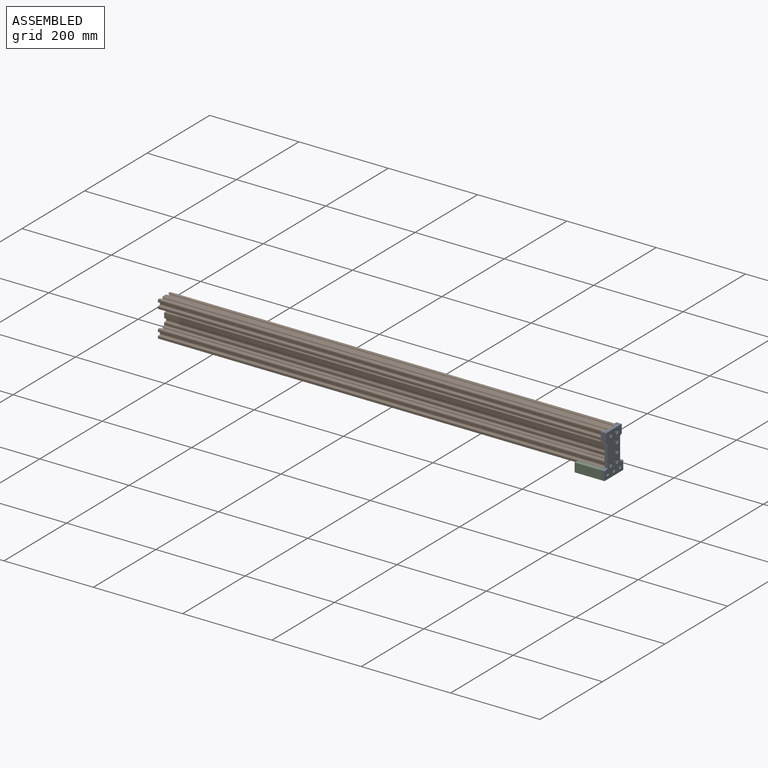
[diagram: assembled view]
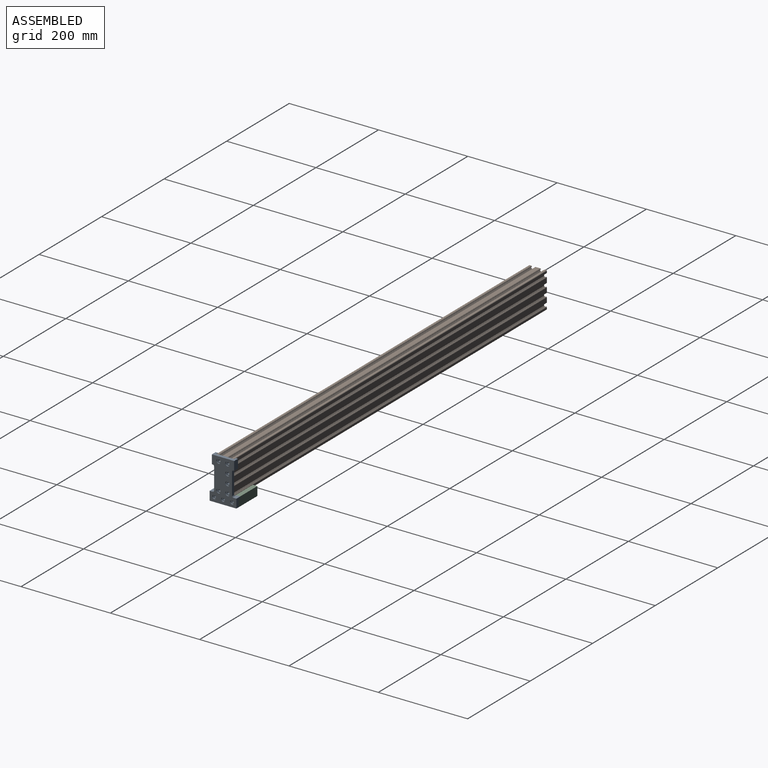
[diagram: assembled view, second angle]
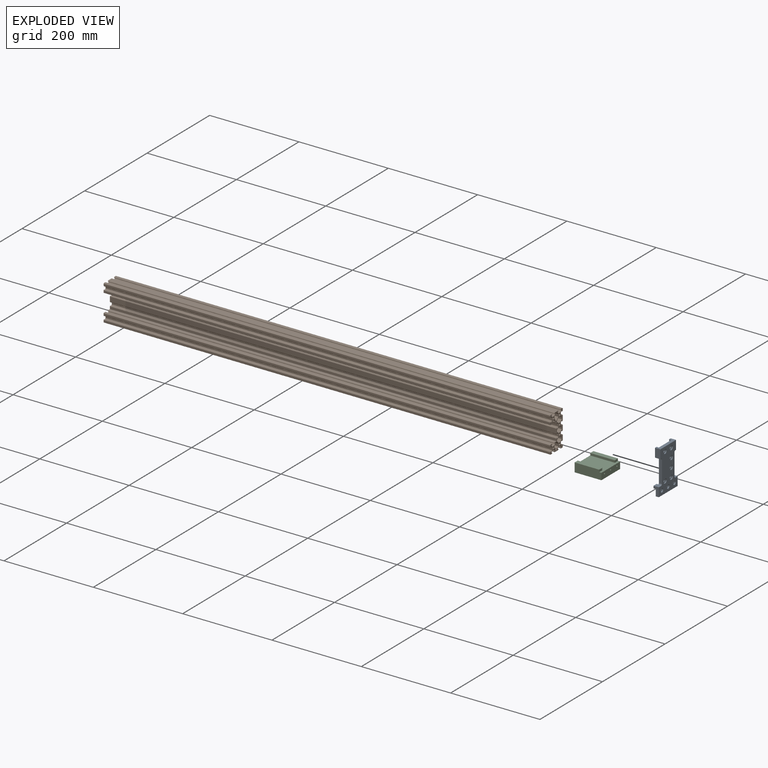
[diagram: exploded view]
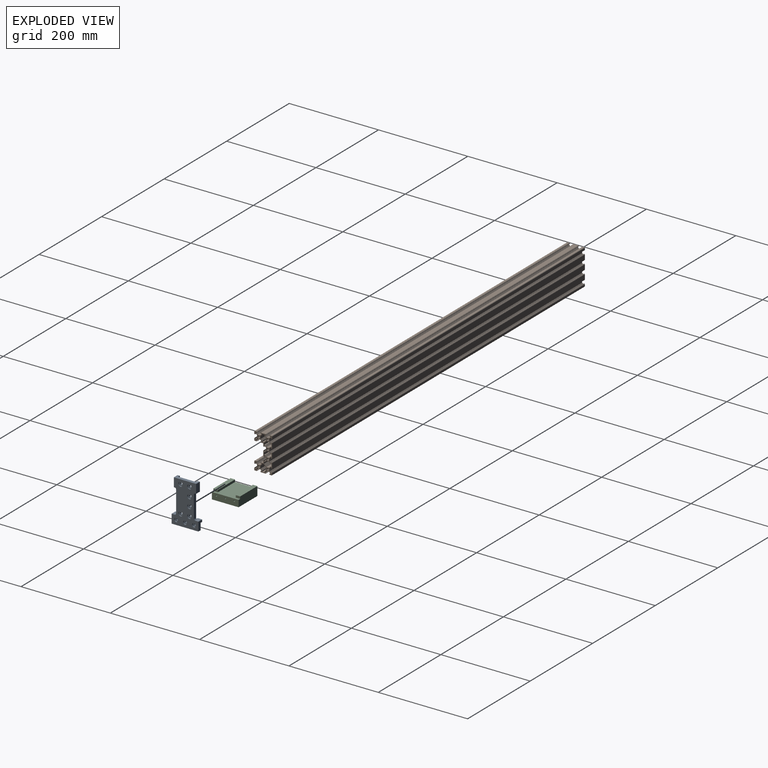
[diagram: exploded view, second angle]
ASSEMBLY  parts=3 mates=2
PART A: 55 faces, bbox 60x12x95 mm
  f0: plane 95x60mm, normal (0,-1,0), area 3933.5mm2, adj f1,f2,f3,f4,f5,f7,f9,f10
  f1: plane 12x10mm, normal (0,0,1), area 97.8mm2, adj f0,f2,f16,f17,f25,f27
  f2: cylinder r=3.17mm len=7mm, axis (0,1,0), area 34.9mm2, adj f0,f1,f3,f17
  f3: plane 48.65x7mm, normal (1,0,0), area 340.6mm2, adj f0,f2,f4,f17
  f4: cylinder r=3.17mm len=7mm, axis (0,1,0), area 34.9mm2, adj f0,f3,f5,f17
  f5: plane 12x5mm, normal (0,0,-1), area 37.8mm2, adj f0,f4,f6,f17,f21,f22
  f6: plane 20x12mm, normal (1,0,0), area 240mm2, adj f5,f7,f17,f22
  f7: plane 50x12mm, normal (0,0,1), area 400mm2, adj f0,f6,f8,f17,f21,f22,f23,f24
  f8: plane 20x12mm, normal (-1,0,0), area 240mm2, adj f7,f9,f17,f24
  f9: plane 12x5mm, normal (0,0,-1), area 37.8mm2, adj f0,f8,f10,f17,f23,f24
  f10: cylinder r=3.17mm len=7mm, axis (0,1,0), area 34.9mm2, adj f0,f9,f11,f17
  f11: plane 48.65x7mm, normal (-1,0,0), area 340.6mm2, adj f0,f10,f12,f17
  f12: cylinder r=3.17mm len=7mm, axis (0,1,0), area 34.9mm2, adj f0,f11,f13,f17
  f13: plane 12x10mm, normal (0,0,1), area 97.8mm2, adj f0,f12,f14,f17,f19,f20
  f14: plane 20x12mm, normal (-1,0,0), area 165mm2, adj f0,f13,f15,f17,f18,f20
  f15: plane 60x7mm, normal (0,0,-1), area 420mm2, adj f0,f14,f16,f17
  f16: plane 20x12mm, normal (1,0,0), area 165mm2, adj f0,f1,f15,f17,f26,f27
  f17: plane 95x60mm, normal (0,1,0), area 3800.3mm2, adj f1,f2,f3,f4,f5,f6,f7,f8
  f18: plane 10x5mm, normal (0,0,-1), area 50mm2, adj f0,f14,f19,f20
  f19: plane 5x5mm, normal (1,0,0), area 25mm2, adj f0,f13,f18,f20
  f20: plane 10x5mm, normal (0,-1,0), area 50mm2, adj f13,f14,f18,f19
  f21: plane 20x5mm, normal (-1,0,0), area 100mm2, adj f0,f5,f7,f22
  f22: plane 20x5mm, normal (0,-1,0), area 100mm2, adj f5,f6,f7,f21
  f23: plane 20x5mm, normal (1,0,0), area 100mm2, adj f0,f7,f9,f24
  f24: plane 20x5mm, normal (0,-1,0), area 100mm2, adj f7,f8,f9,f23
  f25: plane 5x5mm, normal (-1,0,0), area 25mm2, adj f0,f1,f26,f27
  f26: plane 10x5mm, normal (0,0,-1), area 50mm2, adj f0,f16,f25,f27
  f27: plane 10x5mm, normal (0,-1,0), area 50mm2, adj f1,f16,f25,f26
  f28: cylinder r=2.6mm len=5.2mm, axis (0,1,0), area 73.5mm2, adj f0,f29
  f29: plane 9.75x9.75mm, normal (0,1,0), area 53.4mm2, adj f28,f30
  f30: cylinder r=4.88mm len=9.75mm, axis (0,1,0), area 76.6mm2, adj f17,f29
  f31: cylinder r=2.6mm len=5.2mm, axis (0,1,0), area 73.5mm2, adj f0,f32
  f32: plane 9.75x9.75mm, normal (0,1,0), area 53.4mm2, adj f31,f33
  f33: cylinder r=4.88mm len=9.75mm, axis (0,1,0), area 76.6mm2, adj f17,f32
  f34: cylinder r=2.6mm len=5.2mm, axis (0,1,0), area 73.5mm2, adj f0,f35
  f35: plane 9.75x9.75mm, normal (0,1,0), area 53.4mm2, adj f34,f36
  f36: cylinder r=4.88mm len=9.75mm, axis (0,1,0), area 76.6mm2, adj f17,f35
  f37: cylinder r=2.6mm len=5.2mm, axis (0,1,0), area 73.5mm2, adj f0,f38
  f38: plane 9.75x9.75mm, normal (0,1,0), area 53.4mm2, adj f37,f39
  f39: cylinder r=4.88mm len=9.75mm, axis (0,1,0), area 76.6mm2, adj f17,f38
  f40: cylinder r=2.6mm len=5.2mm, axis (0,1,0), area 73.5mm2, adj f0,f41
  f41: plane 9.75x9.75mm, normal (0,1,0), area 53.4mm2, adj f40,f42
  f42: cylinder r=4.88mm len=9.75mm, axis (0,1,0), area 76.6mm2, adj f17,f41
  f43: cylinder r=2.6mm len=5.2mm, axis (0,1,0), area 73.5mm2, adj f0,f44
  f44: plane 9.75x9.75mm, normal (0,1,0), area 53.4mm2, adj f43,f45
  f45: cylinder r=4.88mm len=9.75mm, axis (0,1,0), area 76.6mm2, adj f17,f44
  f46: cylinder r=2.25mm len=4.5mm, axis (0,1,0), area 56.5mm2, adj f0,f47
  f47: plane 8.25x8.25mm, normal (0,1,0), area 37.6mm2, adj f46,f48
  f48: cylinder r=4.12mm len=8.25mm, axis (0,1,0), area 77.8mm2, adj f17,f47
  f49: cylinder r=2.25mm len=4.5mm, axis (0,1,0), area 56.5mm2, adj f0,f50
  f50: plane 8.25x8.25mm, normal (0,1,0), area 37.6mm2, adj f49,f51
  f51: cylinder r=4.12mm len=8.25mm, axis (0,1,0), area 77.8mm2, adj f17,f50
  f52: cylinder r=2.25mm len=4.5mm, axis (0,1,0), area 56.5mm2, adj f0,f53
  f53: plane 8.25x8.25mm, normal (0,1,0), area 37.6mm2, adj f52,f54
  f54: cylinder r=4.12mm len=8.25mm, axis (0,1,0), area 77.8mm2, adj f17,f53
PART B: 288 faces, bbox 40x1000x80 mm
  f0: cylinder r=2.3mm len=1000mm, axis (0,1,0), area 14451.3mm2, adj f286,f287
  f1: cylinder r=2.3mm len=1000mm, axis (0,1,0), area 14451.3mm2, adj f286,f287
  f2: cylinder r=2.3mm len=1000mm, axis (0,1,0), area 14451.3mm2, adj f286,f287
  f3: cylinder r=2.3mm len=1000mm, axis (0,1,0), area 14451.3mm2, adj f286,f287
  f4: cylinder r=2.3mm len=1000mm, axis (0,1,0), area 14451.3mm2, adj f286,f287
  f5: cylinder r=2.3mm len=1000mm, axis (0,1,0), area 14451.3mm2, adj f286,f287
  f6: plane 1000x0.21mm, normal (0.71,0,0.71), area 297mm2, adj f7,f280,f286,f287
  f7: plane 1000x0.21mm, normal (0.71,0,-0.71), area 297mm2, adj f6,f8,f286,f287
  f8: plane 1000x2.63mm, normal (1,0,0), area 2629.3mm2, adj f7,f9,f286,f287
  f9: plane 1000x2.66mm, normal (0.71,0,-0.71), area 3762.7mm2, adj f8,f10,f286,f287
  f10: plane 1000x1.64mm, normal (0,0,-1), area 1639.3mm2, adj f9,f11,f286,f287
  f11: plane 1000x2.11mm, normal (-1,0,0), area 2105mm2, adj f10,f12,f286,f287
  f12: plane 1000x0.62mm, normal (0,0,-1), area 615mm2, adj f11,f13,f286,f287
  f13: plane 1000x1.19mm, normal (0.71,0,-0.71), area 1675.8mm2, adj f12,f14,f286,f287
  f14: plane 1000x3.92mm, normal (1,0,0), area 3920mm2, adj f13,f15,f286,f287
  f15: cylinder r=1.5mm len=1000mm, axis (0,1,0), area 2356.2mm2, adj f14,f16,f286,f287
  f16: plane 1000x3.92mm, normal (0,0,1), area 3920mm2, adj f15,f17,f286,f287
  f17: plane 1000x1.19mm, normal (-0.71,0,0.71), area 1675.8mm2, adj f16,f18,f286,f287
  f18: plane 1000x0.62mm, normal (-1,0,0), area 615mm2, adj f17,f19,f286,f287
  f19: plane 1000x2.11mm, normal (0,0,-1), area 2105mm2, adj f18,f20,f286,f287
  f20: plane 1000x1.64mm, normal (-1,0,0), area 1639.3mm2, adj f19,f21,f286,f287
  f21: plane 1000x2.66mm, normal (-0.71,0,0.71), area 3762.7mm2, adj f20,f22,f286,f287
  f22: plane 1000x2.63mm, normal (0,0,1), area 2629.3mm2, adj f21,f23,f286,f287
  f23: plane 1000x0.21mm, normal (-0.71,0,0.71), area 297mm2, adj f22,f24,f286,f287
  f24: plane 1000x0.21mm, normal (0.71,0,0.71), area 297mm2, adj f23,f25,f286,f287
  f25: plane 1000x2.63mm, normal (0,0,1), area 2629.3mm2, adj f24,f26,f286,f287
  f26: plane 1000x2.66mm, normal (0.71,0,0.71), area 3762.7mm2, adj f25,f27,f286,f287
  f27: plane 1000x1.64mm, normal (1,0,0), area 1639.3mm2, adj f26,f28,f286,f287
  f28: plane 1000x2.11mm, normal (0,0,-1), area 2105mm2, adj f27,f29,f286,f287
  f29: plane 1000x0.62mm, normal (1,0,0), area 615mm2, adj f28,f30,f286,f287
  f30: plane 1000x1.19mm, normal (0.71,0,0.71), area 1675.8mm2, adj f29,f31,f286,f287
  f31: plane 1000x10.84mm, normal (0,0,1), area 10840mm2, adj f30,f32,f286,f287
  f32: plane 1000x1.19mm, normal (-0.71,0,0.71), area 1675.8mm2, adj f31,f33,f286,f287
  f33: plane 1000x0.62mm, normal (-1,0,0), area 615mm2, adj f32,f34,f286,f287
  f34: plane 1000x2.11mm, normal (0,0,-1), area 2105mm2, adj f33,f35,f286,f287
  f35: plane 1000x1.64mm, normal (-1,0,0), area 1639.3mm2, adj f34,f36,f286,f287
  f36: plane 1000x2.66mm, normal (-0.71,0,0.71), area 3762.7mm2, adj f35,f37,f286,f287
  f37: plane 1000x2.63mm, normal (0,0,1), area 2629.3mm2, adj f36,f38,f286,f287
  f38: plane 1000x0.21mm, normal (-0.71,0,0.71), area 297mm2, adj f37,f39,f286,f287
  f39: plane 1000x0.21mm, normal (0.71,0,0.71), area 297mm2, adj f38,f40,f286,f287
  f40: plane 1000x2.63mm, normal (0,0,1), area 2629.3mm2, adj f39,f41,f286,f287
  f41: plane 1000x2.66mm, normal (0.71,0,0.71), area 3762.7mm2, adj f40,f42,f286,f287
  f42: plane 1000x1.64mm, normal (1,0,0), area 1639.3mm2, adj f41,f43,f286,f287
  f43: plane 1000x2.11mm, normal (0,0,-1), area 2105mm2, adj f42,f44,f286,f287
  f44: plane 1000x0.62mm, normal (1,0,0), area 615mm2, adj f43,f45,f286,f287
  f45: plane 1000x1.19mm, normal (0.71,0,0.71), area 1675.8mm2, adj f44,f46,f286,f287
  f46: plane 1000x3.92mm, normal (0,0,1), area 3920mm2, adj f45,f47,f286,f287
  f47: cylinder r=1.5mm len=1000mm, axis (0,1,0), area 2356.2mm2, adj f46,f48,f286,f287
  f48: plane 1000x3.92mm, normal (-1,0,0), area 3920mm2, adj f47,f49,f286,f287
  f49: plane 1000x1.19mm, normal (-0.71,0,-0.71), area 1675.8mm2, adj f48,f50,f286,f287
  f50: plane 1000x0.62mm, normal (0,0,-1), area 615mm2, adj f49,f51,f286,f287
  f51: plane 1000x2.11mm, normal (1,0,0), area 2105mm2, adj f50,f52,f286,f287
  f52: plane 1000x1.64mm, normal (0,0,-1), area 1639.3mm2, adj f51,f53,f286,f287
  f53: plane 1000x2.66mm, normal (-0.71,0,-0.71), area 3762.7mm2, adj f52,f54,f286,f287
  f54: plane 1000x2.63mm, normal (-1,0,0), area 2629.3mm2, adj f53,f55,f286,f287
  f55: plane 1000x0.21mm, normal (-0.71,0,-0.71), area 297mm2, adj f54,f56,f286,f287
  f56: plane 1000x0.21mm, normal (-0.71,0,0.71), area 297mm2, adj f55,f57,f286,f287
  f57: plane 1000x2.63mm, normal (-1,0,0), area 2629.3mm2, adj f56,f58,f286,f287
  f58: plane 1000x2.66mm, normal (-0.71,0,0.71), area 3762.7mm2, adj f57,f59,f286,f287
  f59: plane 1000x1.64mm, normal (0,0,1), area 1639.3mm2, adj f58,f60,f286,f287
  f60: plane 1000x2.11mm, normal (1,0,0), area 2105mm2, adj f59,f61,f286,f287
  f61: plane 1000x0.62mm, normal (0,0,1), area 615mm2, adj f60,f62,f286,f287
  f62: plane 1000x1.19mm, normal (-0.71,0,0.71), area 1675.8mm2, adj f61,f63,f286,f287
  f63: plane 1000x10.84mm, normal (-1,0,0), area 10840mm2, adj f62,f64,f286,f287
  f64: plane 1000x1.19mm, normal (-0.71,0,-0.71), area 1675.8mm2, adj f63,f65,f286,f287
  f65: plane 1000x0.62mm, normal (0,0,-1), area 615mm2, adj f64,f66,f286,f287
  f66: plane 1000x2.11mm, normal (1,0,0), area 2105mm2, adj f65,f67,f286,f287
  f67: plane 1000x1.64mm, normal (0,0,-1), area 1639.3mm2, adj f66,f68,f286,f287
  f68: plane 1000x2.66mm, normal (-0.71,0,-0.71), area 3762.7mm2, adj f67,f69,f286,f287
  f69: plane 1000x2.63mm, normal (-1,0,0), area 2629.3mm2, adj f68,f70,f286,f287
  f70: plane 1000x0.21mm, normal (-0.71,0,-0.71), area 297mm2, adj f69,f71,f286,f287
  f71: plane 1000x0.21mm, normal (-0.71,0,0.71), area 297mm2, adj f70,f72,f286,f287
  f72: plane 1000x2.63mm, normal (-1,0,0), area 2629.3mm2, adj f71,f73,f286,f287
  f73: plane 1000x2.66mm, normal (-0.71,0,0.71), area 3762.7mm2, adj f72,f74,f286,f287
  f74: plane 1000x1.64mm, normal (0,0,1), area 1639.3mm2, adj f73,f75,f286,f287
  f75: plane 1000x2.11mm, normal (1,0,0), area 2105mm2, adj f74,f76,f286,f287
  f76: plane 1000x0.62mm, normal (0,0,1), area 615mm2, adj f75,f77,f286,f287
  f77: plane 1000x1.19mm, normal (-0.71,0,0.71), area 1675.8mm2, adj f76,f78,f286,f287
  f78: plane 1000x10.84mm, normal (-1,0,0), area 10840mm2, adj f77,f79,f286,f287
  f79: plane 1000x1.19mm, normal (-0.71,0,-0.71), area 1675.8mm2, adj f78,f80,f286,f287
  f80: plane 1000x0.62mm, normal (0,0,-1), area 615mm2, adj f79,f81,f286,f287
  f81: plane 1000x2.11mm, normal (1,0,0), area 2105mm2, adj f80,f82,f286,f287
  f82: plane 1000x1.64mm, normal (0,0,-1), area 1639.3mm2, adj f81,f83,f286,f287
  f83: plane 1000x2.66mm, normal (-0.71,0,-0.71), area 3762.7mm2, adj f82,f84,f286,f287
  f84: plane 1000x2.63mm, normal (-1,0,0), area 2629.3mm2, adj f83,f85,f286,f287
  f85: plane 1000x0.21mm, normal (-0.71,0,-0.71), area 297mm2, adj f84,f86,f286,f287
  f86: plane 1000x0.21mm, normal (-0.71,0,0.71), area 297mm2, adj f85,f87,f286,f287
  f87: plane 1000x2.63mm, normal (-1,0,0), area 2629.3mm2, adj f86,f88,f286,f287
  f88: plane 1000x2.66mm, normal (-0.71,0,0.71), area 3762.7mm2, adj f87,f89,f286,f287
  f89: plane 1000x1.64mm, normal (0,0,1), area 1639.3mm2, adj f88,f90,f286,f287
  f90: plane 1000x2.11mm, normal (1,0,0), area 2105mm2, adj f89,f91,f286,f287
  f91: plane 1000x0.62mm, normal (0,0,1), area 615mm2, adj f90,f92,f286,f287
  f92: plane 1000x1.19mm, normal (-0.71,0,0.71), area 1675.8mm2, adj f91,f93,f286,f287
  f93: plane 1000x10.84mm, normal (-1,0,0), area 10840mm2, adj f92,f94,f286,f287
  f94: plane 1000x1.19mm, normal (-0.71,0,-0.71), area 1675.8mm2, adj f93,f95,f286,f287
  f95: plane 1000x0.62mm, normal (0,0,-1), area 615mm2, adj f94,f96,f286,f287
  f96: plane 1000x2.11mm, normal (1,0,0), area 2105mm2, adj f95,f97,f286,f287
  f97: plane 1000x1.64mm, normal (0,0,-1), area 1639.3mm2, adj f96,f98,f286,f287
  f98: plane 1000x2.66mm, normal (-0.71,0,-0.71), area 3762.7mm2, adj f97,f99,f286,f287
  f99: plane 1000x2.63mm, normal (-1,0,0), area 2629.3mm2, adj f98,f100,f286,f287
  f100: plane 1000x0.21mm, normal (-0.71,0,-0.71), area 297mm2, adj f99,f101,f286,f287
  f101: plane 1000x0.21mm, normal (-0.71,0,0.71), area 297mm2, adj f100,f102,f286,f287
  f102: plane 1000x2.63mm, normal (-1,0,0), area 2629.3mm2, adj f101,f103,f286,f287
  f103: plane 1000x2.66mm, normal (-0.71,0,0.71), area 3762.7mm2, adj f102,f104,f286,f287
  f104: plane 1000x1.64mm, normal (0,0,1), area 1639.3mm2, adj f103,f105,f286,f287
  f105: plane 1000x2.11mm, normal (1,0,0), area 2105mm2, adj f104,f106,f286,f287
  f106: plane 1000x0.62mm, normal (0,0,1), area 615mm2, adj f105,f107,f286,f287
  f107: plane 1000x1.19mm, normal (-0.71,0,0.71), area 1675.8mm2, adj f106,f108,f286,f287
  f108: plane 1000x3.92mm, normal (-1,0,0), area 3920mm2, adj f107,f109,f286,f287
  f109: cylinder r=1.5mm len=1000mm, axis (0,1,0), area 2356.2mm2, adj f108,f110,f286,f287
  f110: plane 1000x3.92mm, normal (0,0,-1), area 3920mm2, adj f109,f111,f286,f287
  f111: plane 1000x1.19mm, normal (0.71,0,-0.71), area 1675.8mm2, adj f110,f112,f286,f287
  f112: plane 1000x0.62mm, normal (1,0,0), area 615mm2, adj f111,f113,f286,f287
  f113: plane 1000x2.11mm, normal (0,0,1), area 2105mm2, adj f112,f114,f286,f287
  f114: plane 1000x1.64mm, normal (1,0,0), area 1639.3mm2, adj f113,f115,f286,f287
  f115: plane 1000x2.66mm, normal (0.71,0,-0.71), area 3762.7mm2, adj f114,f116,f286,f287
  f116: plane 1000x2.63mm, normal (0,0,-1), area 2629.3mm2, adj f115,f117,f286,f287
  f117: plane 1000x0.21mm, normal (0.71,0,-0.71), area 297mm2, adj f116,f118,f286,f287
  f118: plane 1000x0.21mm, normal (-0.71,0,-0.71), area 297mm2, adj f117,f119,f286,f287
  f119: plane 1000x2.63mm, normal (0,0,-1), area 2629.3mm2, adj f118,f120,f286,f287
  f120: plane 1000x2.66mm, normal (-0.71,0,-0.71), area 3762.7mm2, adj f119,f121,f286,f287
  f121: plane 1000x1.64mm, normal (-1,0,0), area 1639.3mm2, adj f120,f122,f286,f287
  f122: plane 1000x2.11mm, normal (0,0,1), area 2105mm2, adj f121,f123,f286,f287
  f123: plane 1000x0.62mm, normal (-1,0,0), area 615mm2, adj f122,f124,f286,f287
  f124: plane 1000x1.19mm, normal (-0.71,0,-0.71), area 1675.8mm2, adj f123,f125,f286,f287
  f125: plane 1000x10.84mm, normal (0,0,-1), area 10840mm2, adj f124,f126,f286,f287
  f126: plane 1000x1.19mm, normal (0.71,0,-0.71), area 1675.8mm2, adj f125,f127,f286,f287
  f127: plane 1000x0.62mm, normal (1,0,0), area 615mm2, adj f126,f128,f286,f287
  f128: plane 1000x2.11mm, normal (0,0,1), area 2105mm2, adj f127,f129,f286,f287
  f129: plane 1000x1.64mm, normal (1,0,0), area 1639.3mm2, adj f128,f130,f286,f287
  f130: plane 1000x2.66mm, normal (0.71,0,-0.71), area 3762.7mm2, adj f129,f131,f286,f287
  f131: plane 1000x2.63mm, normal (0,0,-1), area 2629.3mm2, adj f130,f132,f286,f287
  f132: plane 1000x0.21mm, normal (0.71,0,-0.71), area 297mm2, adj f131,f133,f286,f287
  f133: plane 1000x0.21mm, normal (-0.71,0,-0.71), area 297mm2, adj f132,f134,f286,f287
  f134: plane 1000x2.63mm, normal (0,0,-1), area 2629.3mm2, adj f133,f135,f286,f287
  f135: plane 1000x2.66mm, normal (-0.71,0,-0.71), area 3762.7mm2, adj f134,f136,f286,f287
  f136: plane 1000x1.64mm, normal (-1,0,0), area 1639.3mm2, adj f135,f137,f286,f287
  f137: plane 1000x2.11mm, normal (0,0,1), area 2105mm2, adj f136,f138,f286,f287
  f138: plane 1000x0.62mm, normal (-1,0,0), area 615mm2, adj f137,f139,f286,f287
  f139: plane 1000x1.19mm, normal (-0.71,0,-0.71), area 1675.8mm2, adj f138,f140,f286,f287
  f140: plane 1000x3.92mm, normal (0,0,-1), area 3920mm2, adj f139,f141,f286,f287
  f141: cylinder r=1.5mm len=1000mm, axis (0,1,0), area 2356.2mm2, adj f140,f142,f286,f287
  f142: plane 1000x3.92mm, normal (1,0,0), area 3920mm2, adj f141,f143,f286,f287
  f143: plane 1000x1.19mm, normal (0.71,0,0.71), area 1675.8mm2, adj f142,f144,f286,f287
  f144: plane 1000x0.62mm, normal (0,0,1), area 615mm2, adj f143,f145,f286,f287
  f145: plane 1000x2.11mm, normal (-1,0,0), area 2105mm2, adj f144,f146,f286,f287
  f146: plane 1000x1.64mm, normal (0,0,1), area 1639.3mm2, adj f145,f147,f286,f287
  f147: plane 1000x2.66mm, normal (0.71,0,0.71), area 3762.7mm2, adj f146,f148,f286,f287
  f148: plane 1000x2.63mm, normal (1,0,0), area 2629.3mm2, adj f147,f149,f286,f287
  f149: plane 1000x0.21mm, normal (0.71,0,0.71), area 297mm2, adj f148,f150,f286,f287
  f150: plane 1000x0.21mm, normal (0.71,0,-0.71), area 297mm2, adj f149,f151,f286,f287
  f151: plane 1000x2.63mm, normal (1,0,0), area 2629.3mm2, adj f150,f152,f286,f287
  f152: plane 1000x2.66mm, normal (0.71,0,-0.71), area 3762.7mm2, adj f151,f153,f286,f287
  f153: plane 1000x1.64mm, normal (0,0,-1), area 1639.3mm2, adj f152,f154,f286,f287
  f154: plane 1000x2.11mm, normal (-1,0,0), area 2105mm2, adj f153,f155,f286,f287
  f155: plane 1000x0.62mm, normal (0,0,-1), area 615mm2, adj f154,f156,f286,f287
  f156: plane 1000x1.19mm, normal (0.71,0,-0.71), area 1675.8mm2, adj f155,f157,f286,f287
  f157: plane 1000x3.92mm, normal (1,0,0), area 3920mm2, adj f156,f158,f286,f287
  f158: cylinder r=1.5mm len=1000mm, axis (0,1,0), area 2356.2mm2, adj f157,f159,f286,f287
  f159: plane 1000x3.92mm, normal (0,0,1), area 3920mm2, adj f158,f160,f286,f287
  f160: plane 1000x1.19mm, normal (-0.71,0,0.71), area 1675.8mm2, adj f159,f161,f286,f287
  f161: plane 1000x0.62mm, normal (-1,0,0), area 615mm2, adj f160,f162,f286,f287
  f162: plane 1000x2.11mm, normal (0,0,-1), area 2105mm2, adj f161,f163,f286,f287
  f163: plane 1000x1.64mm, normal (-1,0,0), area 1639.3mm2, adj f162,f164,f286,f287
  f164: plane 1000x2.66mm, normal (-0.71,0,0.71), area 3762.7mm2, adj f163,f165,f286,f287
  f165: plane 1000x2.63mm, normal (0,0,1), area 2629.3mm2, adj f164,f166,f286,f287
  f166: plane 1000x0.21mm, normal (-0.71,0,0.71), area 297mm2, adj f165,f167,f286,f287
  f167: plane 1000x0.21mm, normal (0.71,0,0.71), area 297mm2, adj f166,f168,f286,f287
  f168: plane 1000x2.63mm, normal (0,0,1), area 2629.3mm2, adj f167,f169,f286,f287
  f169: plane 1000x2.66mm, normal (0.71,0,0.71), area 3762.7mm2, adj f168,f170,f286,f287
  f170: plane 1000x1.64mm, normal (1,0,0), area 1639.3mm2, adj f169,f171,f286,f287
  f171: plane 1000x2.11mm, normal (0,0,-1), area 2105mm2, adj f170,f172,f286,f287
  f172: plane 1000x0.62mm, normal (1,0,0), area 615mm2, adj f171,f173,f286,f287
  f173: plane 1000x1.19mm, normal (0.71,0,0.71), area 1675.8mm2, adj f172,f174,f286,f287
  f174: plane 1000x5.42mm, normal (0,0,1), area 5420mm2, adj f173,f175,f286,f287
  f175: plane 1000x5.42mm, normal (1,0,0), area 5420mm2, adj f174,f176,f286,f287
  f176: plane 1000x1.19mm, normal (0.71,0,0.71), area 1675.8mm2, adj f175,f177,f286,f287
  f177: plane 1000x0.62mm, normal (0,0,1), area 615mm2, adj f176,f178,f286,f287
  f178: plane 1000x2.11mm, normal (-1,0,0), area 2105mm2, adj f177,f179,f286,f287
  f179: plane 1000x1.64mm, normal (0,0,1), area 1639.3mm2, adj f178,f180,f286,f287
  f180: plane 1000x2.66mm, normal (0.71,0,0.71), area 3762.7mm2, adj f179,f181,f286,f287
  f181: plane 1000x2.63mm, normal (1,0,0), area 2629.3mm2, adj f180,f182,f286,f287
  f182: plane 1000x0.21mm, normal (0.71,0,0.71), area 297mm2, adj f181,f183,f286,f287
  f183: plane 1000x0.21mm, normal (0.71,0,-0.71), area 297mm2, adj f182,f184,f286,f287
  f184: plane 1000x2.63mm, normal (1,0,0), area 2629.3mm2, adj f183,f185,f286,f287
  f185: plane 1000x2.66mm, normal (0.71,0,-0.71), area 3762.7mm2, adj f184,f186,f286,f287
  f186: plane 1000x1.64mm, normal (0,0,-1), area 1639.3mm2, adj f185,f187,f286,f287
  f187: plane 1000x2.11mm, normal (-1,0,0), area 2105mm2, adj f186,f188,f286,f287
  f188: plane 1000x0.62mm, normal (0,0,-1), area 615mm2, adj f187,f189,f286,f287
  f189: plane 1000x1.19mm, normal (0.71,0,-0.71), area 1675.8mm2, adj f188,f190,f286,f287
  f190: plane 1000x10.84mm, normal (1,0,0), area 10840mm2, adj f189,f191,f286,f287
  f191: plane 1000x1.19mm, normal (0.71,0,0.71), area 1675.8mm2, adj f190,f192,f286,f287
  f192: plane 1000x0.62mm, normal (0,0,1), area 615mm2, adj f191,f193,f286,f287
  f193: plane 1000x2.11mm, normal (-1,0,0), area 2105mm2, adj f192,f194,f286,f287
  f194: plane 1000x1.64mm, normal (0,0,1), area 1639.3mm2, adj f193,f195,f286,f287
  f195: plane 1000x2.66mm, normal (0.71,0,0.71), area 3762.7mm2, adj f194,f196,f286,f287
  f196: plane 1000x2.63mm, normal (1,0,0), area 2629.3mm2, adj f195,f197,f286,f287
  f197: plane 1000x0.21mm, normal (0.71,0,0.71), area 297mm2, adj f196,f198,f286,f287
  f198: plane 1000x0.21mm, normal (0.71,0,-0.71), area 297mm2, adj f197,f199,f286,f287
  f199: plane 1000x2.63mm, normal (1,0,0), area 2629.3mm2, adj f198,f200,f286,f287
  f200: plane 1000x2.66mm, normal (0.71,0,-0.71), area 3762.7mm2, adj f199,f201,f286,f287
  f201: plane 1000x1.64mm, normal (0,0,-1), area 1639.3mm2, adj f200,f202,f286,f287
  f202: plane 1000x2.11mm, normal (-1,0,0), area 2105mm2, adj f201,f203,f286,f287
  f203: plane 1000x0.62mm, normal (0,0,-1), area 615mm2, adj f202,f204,f286,f287
  f204: plane 1000x1.19mm, normal (0.71,0,-0.71), area 1675.8mm2, adj f203,f205,f286,f287
  f205: plane 1000x5.42mm, normal (1,0,0), area 5420mm2, adj f204,f206,f286,f287
  f206: plane 1000x5.42mm, normal (0,0,-1), area 5420mm2, adj f205,f207,f286,f287
  f207: plane 1000x1.19mm, normal (0.71,0,-0.71), area 1675.8mm2, adj f206,f208,f286,f287
  f208: plane 1000x0.62mm, normal (1,0,0), area 615mm2, adj f207,f209,f286,f287
  f209: plane 1000x2.11mm, normal (0,0,1), area 2105mm2, adj f208,f210,f286,f287
  f210: plane 1000x1.64mm, normal (1,0,0), area 1639.3mm2, adj f209,f211,f286,f287
  f211: plane 1000x2.66mm, normal (0.71,0,-0.71), area 3762.7mm2, adj f210,f212,f286,f287
  f212: plane 1000x2.63mm, normal (0,0,-1), area 2629.3mm2, adj f211,f213,f286,f287
  f213: plane 1000x0.21mm, normal (0.71,0,-0.71), area 297mm2, adj f212,f214,f286,f287
  f214: plane 1000x0.21mm, normal (-0.71,0,-0.71), area 297mm2, adj f213,f215,f286,f287
  f215: plane 1000x2.63mm, normal (0,0,-1), area 2629.3mm2, adj f214,f216,f286,f287
  f216: plane 1000x2.66mm, normal (-0.71,0,-0.71), area 3762.7mm2, adj f215,f217,f286,f287
  f217: plane 1000x1.64mm, normal (-1,0,0), area 1639.3mm2, adj f216,f218,f286,f287
  f218: plane 1000x2.11mm, normal (0,0,1), area 2105mm2, adj f217,f219,f286,f287
  f219: plane 1000x0.62mm, normal (-1,0,0), area 615mm2, adj f218,f220,f286,f287
  f220: plane 1000x1.19mm, normal (-0.71,0,-0.71), area 1675.8mm2, adj f219,f221,f286,f287
  f221: plane 1000x3.92mm, normal (0,0,-1), area 3920mm2, adj f220,f222,f286,f287
  f222: cylinder r=1.5mm len=1000mm, axis (0,1,0), area 2356.2mm2, adj f221,f223,f286,f287
  f223: plane 1000x3.92mm, normal (1,0,0), area 3920mm2, adj f222,f224,f286,f287
  f224: plane 1000x1.19mm, normal (0.71,0,0.71), area 1675.8mm2, adj f223,f225,f286,f287
  f225: plane 1000x0.62mm, normal (0,0,1), area 615mm2, adj f224,f226,f286,f287
  f226: plane 1000x2.11mm, normal (-1,0,0), area 2105mm2, adj f225,f227,f286,f287
  f227: plane 1000x1.64mm, normal (0,0,1), area 1639.3mm2, adj f226,f228,f286,f287
  f228: plane 1000x2.66mm, normal (0.71,0,0.71), area 3762.7mm2, adj f227,f280,f286,f287
  f229: plane 1000x1.96mm, normal (0,0,1), area 1960.7mm2, adj f230,f281,f286,f287
  f230: plane 1000x5.4mm, normal (1,0,0), area 5400mm2, adj f229,f231,f286,f287
  f231: plane 1000x1.96mm, normal (0,0,-1), area 1960.7mm2, adj f230,f232,f286,f287
  f232: plane 1000x3.4mm, normal (0.71,0,-0.71), area 4808.3mm2, adj f231,f233,f286,f287
  f233: plane 1000x5.68mm, normal (0,0,-1), area 5678.7mm2, adj f232,f234,f286,f287
  f234: plane 1000x3.4mm, normal (-0.71,0,-0.71), area 4808.3mm2, adj f233,f235,f286,f287
  f235: plane 1000x1.96mm, normal (0,0,-1), area 1960.7mm2, adj f234,f236,f286,f287
  f236: plane 1000x5.4mm, normal (-1,0,0), area 5400mm2, adj f235,f237,f286,f287
  f237: plane 1000x1.96mm, normal (0,0,1), area 1960.7mm2, adj f236,f238,f286,f287
  f238: plane 1000x3.4mm, normal (-0.71,0,0.71), area 4808.3mm2, adj f237,f239,f286,f287
  f239: plane 1000x5.68mm, normal (0,0,1), area 5678.7mm2, adj f238,f281,f286,f287
  f240: plane 1000x1.96mm, normal (0,0,1), area 1960.7mm2, adj f241,f282,f286,f287
  f241: plane 1000x5.4mm, normal (1,0,0), area 5400mm2, adj f240,f242,f286,f287
  f242: plane 1000x1.96mm, normal (0,0,-1), area 1960.7mm2, adj f241,f243,f286,f287
  f243: plane 1000x3.4mm, normal (0.71,0,-0.71), area 4808.3mm2, adj f242,f244,f286,f287
  f244: plane 1000x5.68mm, normal (0,0,-1), area 5678.7mm2, adj f243,f245,f286,f287
  f245: plane 1000x5.36mm, normal (-0.71,0,-0.71), area 7581.1mm2, adj f244,f246,f286,f287
  f246: plane 1000x3.44mm, normal (-1,0,0), area 3439.3mm2, adj f245,f247,f286,f287
  f247: plane 1000x1.96mm, normal (0,0,1), area 1960.7mm2, adj f246,f248,f286,f287
  f248: plane 1000x3.4mm, normal (-0.71,0,0.71), area 4808.3mm2, adj f247,f249,f286,f287
  f249: plane 1000x5.68mm, normal (0,0,1), area 5678.7mm2, adj f248,f282,f286,f287
  f250: plane 1000x1.96mm, normal (-1,0,0), area 1960.7mm2, adj f251,f283,f286,f287
  f251: plane 1000x5.4mm, normal (0,0,1), area 5400mm2, adj f250,f252,f286,f287
  f252: plane 1000x1.96mm, normal (1,0,0), area 1960.7mm2, adj f251,f253,f286,f287
  f253: plane 1000x3.4mm, normal (0.71,0,0.71), area 4808.3mm2, adj f252,f254,f286,f287
  f254: plane 1000x5.68mm, normal (1,0,0), area 5678.7mm2, adj f253,f255,f286,f287
  f255: plane 1000x5.36mm, normal (0.71,0,-0.71), area 7581.1mm2, adj f254,f256,f286,f287
  f256: plane 1000x3.44mm, normal (0,0,-1), area 3439.3mm2, adj f255,f257,f286,f287
  f257: plane 1000x1.96mm, normal (-1,0,0), area 1960.7mm2, adj f256,f258,f286,f287
  f258: plane 1000x3.4mm, normal (-0.71,0,-0.71), area 4808.3mm2, adj f257,f259,f286,f287
  f259: plane 1000x5.68mm, normal (-1,0,0), area 5678.7mm2, adj f258,f283,f286,f287
  f260: plane 1000x1.96mm, normal (0,0,1), area 1960.7mm2, adj f261,f284,f286,f287
  f261: plane 1000x5.4mm, normal (1,0,0), area 5400mm2, adj f260,f262,f286,f287
  f262: plane 1000x1.96mm, normal (0,0,-1), area 1960.7mm2, adj f261,f263,f286,f287
  f263: plane 1000x3.4mm, normal (0.71,0,-0.71), area 4808.3mm2, adj f262,f264,f286,f287
  f264: plane 1000x5.68mm, normal (0,0,-1), area 5678.7mm2, adj f263,f265,f286,f287
  f265: plane 1000x3.4mm, normal (-0.71,0,-0.71), area 4808.3mm2, adj f264,f266,f286,f287
  f266: plane 1000x1.96mm, normal (0,0,-1), area 1960.7mm2, adj f265,f267,f286,f287
  f267: plane 1000x3.44mm, normal (-1,0,0), area 3439.3mm2, adj f266,f268,f286,f287
  f268: plane 1000x5.36mm, normal (-0.71,0,0.71), area 7581.1mm2, adj f267,f269,f286,f287
  f269: plane 1000x5.68mm, normal (0,0,1), area 5678.7mm2, adj f268,f284,f286,f287
  f270: plane 1000x1.96mm, normal (1,0,0), area 1960.7mm2, adj f271,f285,f286,f287
  f271: plane 1000x5.4mm, normal (0,0,-1), area 5400mm2, adj f270,f272,f286,f287
  f272: plane 1000x1.96mm, normal (-1,0,0), area 1960.7mm2, adj f271,f273,f286,f287
  f273: plane 1000x3.4mm, normal (-0.71,0,-0.71), area 4808.3mm2, adj f272,f274,f286,f287
  f274: plane 1000x5.68mm, normal (-1,0,0), area 5678.7mm2, adj f273,f275,f286,f287
  f275: plane 1000x3.4mm, normal (-0.71,0,0.71), area 4808.3mm2, adj f274,f276,f286,f287
  f276: plane 1000x1.96mm, normal (-1,0,0), area 1960.7mm2, adj f275,f277,f286,f287
  f277: plane 1000x3.44mm, normal (0,0,1), area 3439.3mm2, adj f276,f278,f286,f287
  f278: plane 1000x5.36mm, normal (0.71,0,0.71), area 7581.1mm2, adj f277,f279,f286,f287
  f279: plane 1000x5.68mm, normal (1,0,0), area 5678.7mm2, adj f278,f285,f286,f287
  f280: plane 1000x2.63mm, normal (1,0,0), area 2629.3mm2, adj f6,f228,f286,f287
  f281: plane 1000x3.4mm, normal (0.71,0,0.71), area 4808.3mm2, adj f229,f239,f286,f287
  f282: plane 1000x3.4mm, normal (0.71,0,0.71), area 4808.3mm2, adj f240,f249,f286,f287
  f283: plane 1000x3.4mm, normal (-0.71,0,0.71), area 4808.3mm2, adj f250,f259,f286,f287
  f284: plane 1000x3.4mm, normal (0.71,0,0.71), area 4808.3mm2, adj f260,f269,f286,f287
  f285: plane 1000x3.4mm, normal (0.71,0,-0.71), area 4808.3mm2, adj f270,f279,f286,f287
  f286: plane 80x40mm, normal (0,-1,0), area 799.1mm2, adj f0,f1,f2,f3,f4,f5,f6,f7
  f287: plane 80x40mm, normal (0,1,0), area 799.1mm2, adj f0,f1,f2,f3,f4,f5,f6,f7
PART C: 15 faces, bbox 60x60x20 mm
  f0: plane 60x15mm, normal (0,1,0), area 874.3mm2, adj f1,f2,f5,f8,f12,f13,f14
  f1: plane 60x60mm, normal (0,0,-1), area 3600mm2, adj f0,f2,f8,f9
  f2: plane 60x20mm, normal (1,0,0), area 1175mm2, adj f0,f1,f3,f5,f9,f11
  f3: plane 55x10mm, normal (0,0,1), area 550mm2, adj f2,f4,f9,f11
  f4: plane 55x5mm, normal (-1,0,0), area 275mm2, adj f3,f5,f9,f11
  f5: plane 60x60mm, normal (0,0,1), area 2500mm2, adj f0,f2,f4,f6,f8,f9,f10,f11
  f6: plane 55x5mm, normal (1,0,0), area 275mm2, adj f5,f7,f9,f10
  f7: plane 55x10mm, normal (0,0,1), area 550mm2, adj f6,f8,f9,f10
  f8: plane 60x20mm, normal (-1,0,0), area 1175mm2, adj f0,f1,f5,f7,f9,f10
  f9: plane 60x20mm, normal (0,-1,0), area 974.3mm2, adj f1,f2,f3,f4,f5,f6,f7,f8
  f10: plane 10x5mm, normal (0,1,0), area 50mm2, adj f5,f6,f7,f8
  f11: plane 10x5mm, normal (0,1,0), area 50mm2, adj f2,f3,f4,f5
  f12: cylinder r=1.65mm len=60mm, axis (0,1,0), area 622mm2, adj f0,f9
  f13: cylinder r=1.65mm len=60mm, axis (0,1,0), area 622mm2, adj f0,f9
  f14: cylinder r=1.65mm len=60mm, axis (0,1,0), area 622mm2, adj f0,f9
PLACE A rot(axis=(0,0,-1),90deg) t=(522.72,-481.78,75.52)mm
PLACE B rot(axis=(0.71,-0.71,0),180deg) t=(-484.28,-481.78,80.52)mm
PLACE C rot(axis=(0,0,-1),90deg) t=(515.72,-480.44,75.43)mm
MATE fastened C.f13 <-> A.f49  axis (1,0,0) through (515.72,-481.78,35.52)mm
MATE fastened B.f1 <-> A.f28  axis (1,0,0) through (515.72,-491.78,110.52)mm
